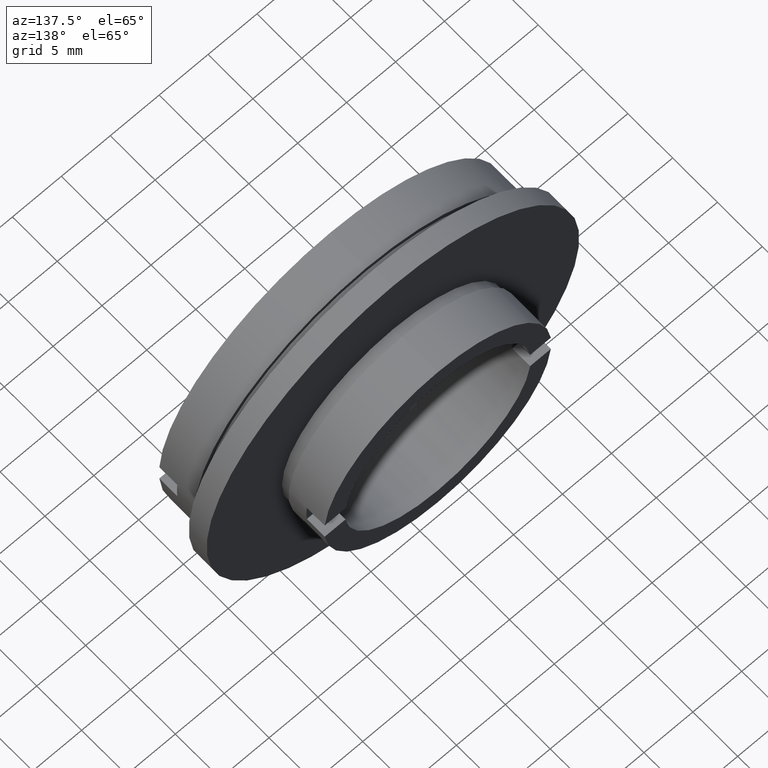
[diagram: clean part render]
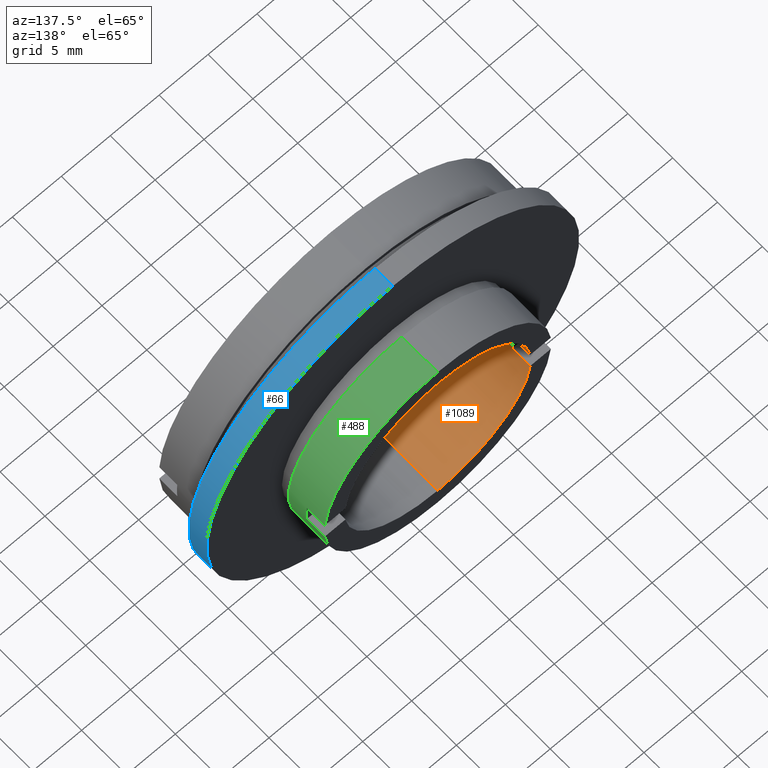
[diagram: same view with three faces highlighted in distinct colors, each labeled with its STEP entity id]
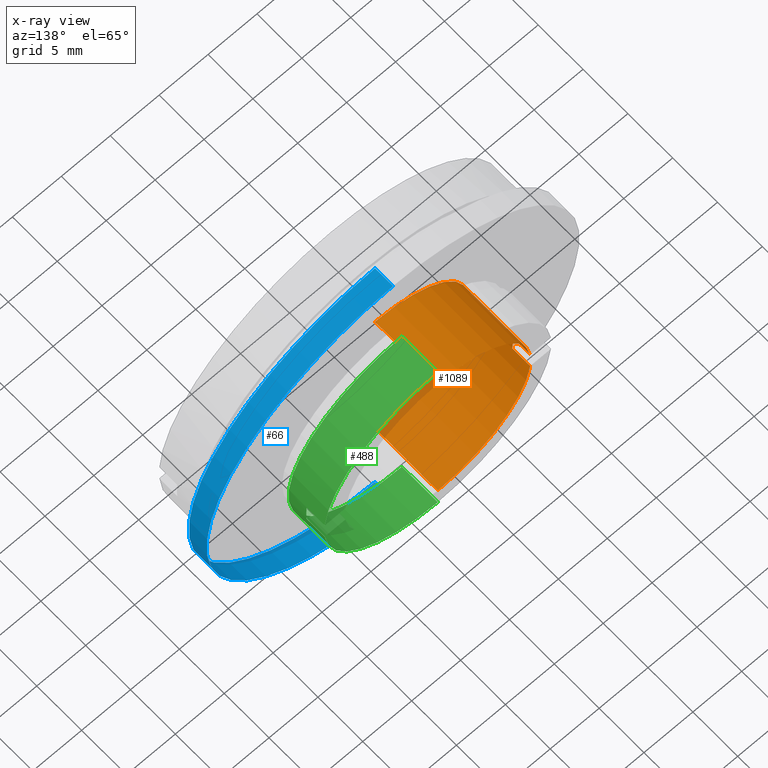
[diagram: x-ray of the same camera — body ghosted, the three highlighted faces saturated]
A machine part, auxiliary view with three faces highlighted in distinct colors.
The next image is the same camera in x-ray (body ghosted, the three faces saturated) — at least one of them is partly hidden behind the body in this view.
Their STEP definitions:

[orange] entity #1089 — the highlighted cylindrical surface (partial cylindrical patch) has radius 9.5 mm, axis along (-0, 1, -0).
#3 = ORIENTED_EDGE ( 'NONE', *, *, #1327, .T. ) ;
#42 = ORIENTED_EDGE ( 'NONE', *, *, #921, .F. ) ;
#74 = CARTESIAN_POINT ( 'NONE',  ( -9.447221813845590800, 12.00000000000000000, 1.000000000000001600 ) ) ;
#89 = EDGE_LOOP ( 'NONE', ( #270, #3, #592, #42, #268, #798, #903, #1098 ) ) ;
#94 = CARTESIAN_POINT ( 'NONE',  ( 1.163414459189985300E-015, 5.000000000000000900, -9.499999999999998200 ) ) ;
#111 = DIRECTION ( 'NONE',  ( -0.0000000000000000000, 1.000000000000000000, -0.0000000000000000000 ) ) ;
#202 = CARTESIAN_POINT ( 'NONE',  ( -9.447221813845590800, 10.00000000000000000, -0.9999999999999974500 ) ) ;
#225 = AXIS2_PLACEMENT_3D ( 'NONE', #477, #499, #486 ) ;
#268 = ORIENTED_EDGE ( 'NONE', *, *, #859, .F. ) ;
#270 = ORIENTED_EDGE ( 'NONE', *, *, #672, .F. ) ;
#300 = CARTESIAN_POINT ( 'NONE',  ( 0.0000000000000000000, 12.00000000000000000, 0.0000000000000000000 ) ) ;
#321 = VERTEX_POINT ( 'NONE', #442 ) ;
#342 = DIRECTION ( 'NONE',  ( -0.0000000000000000000, 1.000000000000000000, -0.0000000000000000000 ) ) ;
#359 = VERTEX_POINT ( 'NONE', #1019 ) ;
#388 = CARTESIAN_POINT ( 'NONE',  ( -9.447221813845589000, 22.67749945107591400, -1.000000000000000000 ) ) ;
#399 = VERTEX_POINT ( 'NONE', #510 ) ;
#413 = DIRECTION ( 'NONE',  ( -0.0000000000000000000, 1.000000000000000000, -0.0000000000000000000 ) ) ;
#415 = DIRECTION ( 'NONE',  ( 0.0000000000000000000, 0.0000000000000000000, 1.000000000000000000 ) ) ;
#442 = CARTESIAN_POINT ( 'NONE',  ( 0.0000000000000000000, 5.000000000000000900, 9.499999999999998200 ) ) ;
#472 = DIRECTION ( 'NONE',  ( -0.0000000000000000000, 1.000000000000000000, -0.0000000000000000000 ) ) ;
#477 = CARTESIAN_POINT ( 'NONE',  ( 0.0000000000000000000, 10.00000000000000000, 0.0000000000000000000 ) ) ;
#478 = VECTOR ( 'NONE', #1237, 1000.000000000000000 ) ;
#485 = CIRCLE ( 'NONE', #568, 9.499999999999998200 ) ;
#486 = DIRECTION ( 'NONE',  ( 0.0000000000000000000, 0.0000000000000000000, -1.000000000000000000 ) ) ;
#498 = EDGE_CURVE ( 'NONE', #1068, #972, #534, .T. ) ;
#499 = DIRECTION ( 'NONE',  ( -0.0000000000000000000, -1.000000000000000000, -0.0000000000000000000 ) ) ;
#510 = CARTESIAN_POINT ( 'NONE',  ( -9.447221813845590800, 10.00000000000000000, 1.000000000000001300 ) ) ;
#534 = CIRCLE ( 'NONE', #662, 9.499999999999998200 ) ;
#541 = CARTESIAN_POINT ( 'NONE',  ( 0.0000000000000000000, 5.000000000000000900, 0.0000000000000000000 ) ) ;
#544 = LINE ( 'NONE', #670, #1183 ) ;
#568 = AXIS2_PLACEMENT_3D ( 'NONE', #541, #472, #1241 ) ;
#592 = ORIENTED_EDGE ( 'NONE', *, *, #808, .T. ) ;
#598 = DIRECTION ( 'NONE',  ( 0.0000000000000000000, 0.0000000000000000000, 1.000000000000000000 ) ) ;
#629 = VERTEX_POINT ( 'NONE', #202 ) ;
#638 = CARTESIAN_POINT ( 'NONE',  ( 0.0000000000000000000, 22.67749945107591400, 0.0000000000000000000 ) ) ;
#649 = LINE ( 'NONE', #1288, #1184 ) ;
#652 = CARTESIAN_POINT ( 'NONE',  ( 0.0000000000000000000, 12.00000000000000000, 9.499999999999998200 ) ) ;
#660 = LINE ( 'NONE', #890, #478 ) ;
#662 = AXIS2_PLACEMENT_3D ( 'NONE', #1253, #111, #415 ) ;
#664 = EDGE_CURVE ( 'NONE', #1068, #399, #660, .T. ) ;
#670 = CARTESIAN_POINT ( 'NONE',  ( 1.163414459189985300E-015, 22.67749945107591400, -9.499999999999998200 ) ) ;
#672 = EDGE_CURVE ( 'NONE', #1054, #321, #485, .T. ) ;
#682 = CIRCLE ( 'NONE', #825, 9.499999999999998200 ) ;
#700 = DIRECTION ( 'NONE',  ( -0.0000000000000000000, 1.000000000000000000, -0.0000000000000000000 ) ) ;
#718 = CARTESIAN_POINT ( 'NONE',  ( 1.163414459189985300E-015, 12.00000000000000000, -9.499999999999998200 ) ) ;
#743 = CIRCLE ( 'NONE', #225, 9.499999999999998200 ) ;
#798 = ORIENTED_EDGE ( 'NONE', *, *, #664, .F. ) ;
#808 = EDGE_CURVE ( 'NONE', #929, #359, #682, .T. ) ;
#816 = VECTOR ( 'NONE', #342, 1000.000000000000000 ) ;
#819 = LINE ( 'NONE', #388, #816 ) ;
#825 = AXIS2_PLACEMENT_3D ( 'NONE', #300, #941, #930 ) ;
#827 = AXIS2_PLACEMENT_3D ( 'NONE', #638, #1127, #598 ) ;
#859 = EDGE_CURVE ( 'NONE', #399, #629, #743, .T. ) ;
#890 = CARTESIAN_POINT ( 'NONE',  ( -9.447221813845589000, 22.67749945107591400, 1.000000000000002900 ) ) ;
#903 = ORIENTED_EDGE ( 'NONE', *, *, #498, .T. ) ;
#921 = EDGE_CURVE ( 'NONE', #629, #359, #819, .T. ) ;
#925 = CYLINDRICAL_SURFACE ( 'NONE', #827, 9.499999999999998200 ) ;
#929 = VERTEX_POINT ( 'NONE', #718 ) ;
#930 = DIRECTION ( 'NONE',  ( 0.0000000000000000000, 0.0000000000000000000, 1.000000000000000000 ) ) ;
#941 = DIRECTION ( 'NONE',  ( -0.0000000000000000000, 1.000000000000000000, -0.0000000000000000000 ) ) ;
#972 = VERTEX_POINT ( 'NONE', #652 ) ;
#1019 = CARTESIAN_POINT ( 'NONE',  ( -9.447221813845590800, 12.00000000000000000, -0.9999999999999978900 ) ) ;
#1054 = VERTEX_POINT ( 'NONE', #94 ) ;
#1068 = VERTEX_POINT ( 'NONE', #74 ) ;
#1078 = FACE_OUTER_BOUND ( 'NONE', #89, .T. ) ;
#1089 = ADVANCED_FACE ( 'NONE', ( #1078 ), #925, .F. ) ;
#1098 = ORIENTED_EDGE ( 'NONE', *, *, #1099, .F. ) ;
#1099 = EDGE_CURVE ( 'NONE', #321, #972, #649, .T. ) ;
#1127 = DIRECTION ( 'NONE',  ( -0.0000000000000000000, 1.000000000000000000, -0.0000000000000000000 ) ) ;
#1183 = VECTOR ( 'NONE', #700, 1000.000000000000000 ) ;
#1184 = VECTOR ( 'NONE', #413, 1000.000000000000000 ) ;
#1237 = DIRECTION ( 'NONE',  ( 0.0000000000000000000, -1.000000000000000000, 0.0000000000000000000 ) ) ;
#1241 = DIRECTION ( 'NONE',  ( 0.0000000000000000000, 0.0000000000000000000, 1.000000000000000000 ) ) ;
#1253 = CARTESIAN_POINT ( 'NONE',  ( 0.0000000000000000000, 12.00000000000000000, 0.0000000000000000000 ) ) ;
#1288 = CARTESIAN_POINT ( 'NONE',  ( 0.0000000000000000000, 22.67749945107591400, 9.499999999999998200 ) ) ;
#1327 = EDGE_CURVE ( 'NONE', #1054, #929, #544, .T. ) ;

[blue] entity #66 — the highlighted cylindrical surface (partial cylindrical patch) has radius 19.05 mm, axis along (-0, 1, -0).
#26 = ORIENTED_EDGE ( 'NONE', *, *, #778, .T. ) ;
#34 = LINE ( 'NONE', #955, #582 ) ;
#50 = DIRECTION ( 'NONE',  ( -0.0000000000000000000, 1.000000000000000000, -0.0000000000000000000 ) ) ;
#62 = CARTESIAN_POINT ( 'NONE',  ( 2.332952152375707300E-015, 5.000000000000000900, -19.04999999999999700 ) ) ;
#66 = ADVANCED_FACE ( 'NONE', ( #176 ), #149, .T. ) ;
#83 = ORIENTED_EDGE ( 'NONE', *, *, #1179, .F. ) ;
#149 = CYLINDRICAL_SURFACE ( 'NONE', #248, 19.04999999999999700 ) ;
#176 = FACE_OUTER_BOUND ( 'NONE', #1143, .T. ) ;
#248 = AXIS2_PLACEMENT_3D ( 'NONE', #1088, #50, #393 ) ;
#332 = DIRECTION ( 'NONE',  ( 0.0000000000000000000, 0.0000000000000000000, 1.000000000000000000 ) ) ;
#393 = DIRECTION ( 'NONE',  ( 0.0000000000000000000, 0.0000000000000000000, 1.000000000000000000 ) ) ;
#412 = ORIENTED_EDGE ( 'NONE', *, *, #840, .T. ) ;
#414 = AXIS2_PLACEMENT_3D ( 'NONE', #878, #786, #332 ) ;
#421 = CARTESIAN_POINT ( 'NONE',  ( 0.0000000000000000000, 5.000000000000000900, 19.04999999999999700 ) ) ;
#558 = DIRECTION ( 'NONE',  ( -0.0000000000000000000, 1.000000000000000000, -0.0000000000000000000 ) ) ;
#562 = CIRCLE ( 'NONE', #1108, 19.04999999999999700 ) ;
#582 = VECTOR ( 'NONE', #858, 1000.000000000000000 ) ;
#617 = ORIENTED_EDGE ( 'NONE', *, *, #815, .F. ) ;
#692 = CIRCLE ( 'NONE', #414, 19.04999999999999700 ) ;
#699 = VERTEX_POINT ( 'NONE', #1336 ) ;
#713 = LINE ( 'NONE', #1153, #745 ) ;
#745 = VECTOR ( 'NONE', #558, 1000.000000000000000 ) ;
#778 = EDGE_CURVE ( 'NONE', #1308, #1045, #562, .T. ) ;
#786 = DIRECTION ( 'NONE',  ( -0.0000000000000000000, 1.000000000000000000, -0.0000000000000000000 ) ) ;
#815 = EDGE_CURVE ( 'NONE', #699, #1171, #692, .T. ) ;
#840 = EDGE_CURVE ( 'NONE', #1045, #1171, #713, .T. ) ;
#858 = DIRECTION ( 'NONE',  ( -0.0000000000000000000, 1.000000000000000000, -0.0000000000000000000 ) ) ;
#878 = CARTESIAN_POINT ( 'NONE',  ( 0.0000000000000000000, 7.000000000000002700, 0.0000000000000000000 ) ) ;
#955 = CARTESIAN_POINT ( 'NONE',  ( 0.0000000000000000000, 22.67749945107591400, 19.04999999999999700 ) ) ;
#979 = DIRECTION ( 'NONE',  ( -0.0000000000000000000, 1.000000000000000000, -0.0000000000000000000 ) ) ;
#1005 = CARTESIAN_POINT ( 'NONE',  ( 0.0000000000000000000, 5.000000000000000900, 0.0000000000000000000 ) ) ;
#1009 = DIRECTION ( 'NONE',  ( 0.0000000000000000000, 0.0000000000000000000, 1.000000000000000000 ) ) ;
#1045 = VERTEX_POINT ( 'NONE', #62 ) ;
#1088 = CARTESIAN_POINT ( 'NONE',  ( 0.0000000000000000000, 22.67749945107591400, 0.0000000000000000000 ) ) ;
#1108 = AXIS2_PLACEMENT_3D ( 'NONE', #1005, #979, #1009 ) ;
#1143 = EDGE_LOOP ( 'NONE', ( #26, #412, #617, #83 ) ) ;
#1153 = CARTESIAN_POINT ( 'NONE',  ( 2.332952152375707300E-015, 22.67749945107591400, -19.04999999999999700 ) ) ;
#1171 = VERTEX_POINT ( 'NONE', #1264 ) ;
#1179 = EDGE_CURVE ( 'NONE', #1308, #699, #34, .T. ) ;
#1264 = CARTESIAN_POINT ( 'NONE',  ( 2.332952152375707300E-015, 7.000000000000002700, -19.04999999999999700 ) ) ;
#1308 = VERTEX_POINT ( 'NONE', #421 ) ;
#1336 = CARTESIAN_POINT ( 'NONE',  ( 0.0000000000000000000, 7.000000000000002700, 19.04999999999999700 ) ) ;

[green] entity #488 — the highlighted cylindrical surface (partial cylindrical patch) has radius 11.6 mm, axis along (-0, 1, -0).
#16 = VERTEX_POINT ( 'NONE', #724 ) ;
#20 = LINE ( 'NONE', #1114, #235 ) ;
#37 = CIRCLE ( 'NONE', #640, 11.59999999999999800 ) ;
#88 = VERTEX_POINT ( 'NONE', #386 ) ;
#98 = DIRECTION ( 'NONE',  ( 0.0000000000000000000, 1.000000000000000000, 0.0000000000000000000 ) ) ;
#105 = VERTEX_POINT ( 'NONE', #1174 ) ;
#120 = CARTESIAN_POINT ( 'NONE',  ( 1.420590287010929300E-015, 8.000000000000000000, -11.59999999999999800 ) ) ;
#123 = ORIENTED_EDGE ( 'NONE', *, *, #425, .F. ) ;
#148 = DIRECTION ( 'NONE',  ( -0.0000000000000000000, 1.000000000000000000, -0.0000000000000000000 ) ) ;
#150 = VERTEX_POINT ( 'NONE', #346 ) ;
#201 = AXIS2_PLACEMENT_3D ( 'NONE', #395, #404, #289 ) ;
#206 = CARTESIAN_POINT ( 'NONE',  ( 11.55681617055493000, 10.00000000000000000, -0.9999999999999974500 ) ) ;
#223 = VERTEX_POINT ( 'NONE', #366 ) ;
#235 = VECTOR ( 'NONE', #1165, 1000.000000000000000 ) ;
#247 = CARTESIAN_POINT ( 'NONE',  ( 0.0000000000000000000, 10.00000000000000000, 0.0000000000000000000 ) ) ;
#252 = EDGE_CURVE ( 'NONE', #1003, #1274, #37, .T. ) ;
#282 = CARTESIAN_POINT ( 'NONE',  ( 0.0000000000000000000, 22.67749945107591400, 0.0000000000000000000 ) ) ;
#289 = DIRECTION ( 'NONE',  ( 0.0000000000000000000, 0.0000000000000000000, 1.000000000000000000 ) ) ;
#299 = FACE_OUTER_BOUND ( 'NONE', #874, .T. ) ;
#325 = EDGE_CURVE ( 'NONE', #1026, #223, #1033, .T. ) ;
#333 = CARTESIAN_POINT ( 'NONE',  ( 0.0000000000000000000, 12.00000000000000000, 0.0000000000000000000 ) ) ;
#346 = CARTESIAN_POINT ( 'NONE',  ( 11.55681617055493000, 10.00000000000000000, 1.000000000000001300 ) ) ;
#362 = ORIENTED_EDGE ( 'NONE', *, *, #252, .T. ) ;
#366 = CARTESIAN_POINT ( 'NONE',  ( 11.55681617055493000, 12.00000000000000000, -0.9999999999999978900 ) ) ;
#374 = CIRCLE ( 'NONE', #1091, 11.59999999999999800 ) ;
#386 = CARTESIAN_POINT ( 'NONE',  ( 1.420590287010929300E-015, 12.00000000000000000, -11.59999999999999800 ) ) ;
#395 = CARTESIAN_POINT ( 'NONE',  ( 0.0000000000000000000, 12.00000000000000000, 0.0000000000000000000 ) ) ;
#404 = DIRECTION ( 'NONE',  ( -0.0000000000000000000, 1.000000000000000000, -0.0000000000000000000 ) ) ;
#425 = EDGE_CURVE ( 'NONE', #150, #1026, #374, .T. ) ;
#484 = CARTESIAN_POINT ( 'NONE',  ( 0.0000000000000000000, 22.67749945107591400, 11.59999999999999800 ) ) ;
#488 = ADVANCED_FACE ( 'NONE', ( #299 ), #1226, .T. ) ;
#490 = EDGE_CURVE ( 'NONE', #223, #88, #533, .T. ) ;
#497 = DIRECTION ( 'NONE',  ( -0.0000000000000000000, 1.000000000000000000, -0.0000000000000000000 ) ) ;
#533 = CIRCLE ( 'NONE', #731, 11.59999999999999800 ) ;
#551 = ORIENTED_EDGE ( 'NONE', *, *, #1318, .F. ) ;
#595 = CARTESIAN_POINT ( 'NONE',  ( 0.0000000000000000000, 8.000000000000000000, 0.0000000000000000000 ) ) ;
#640 = AXIS2_PLACEMENT_3D ( 'NONE', #595, #1334, #1272 ) ;
#724 = CARTESIAN_POINT ( 'NONE',  ( 0.0000000000000000000, 12.00000000000000000, 11.59999999999999800 ) ) ;
#725 = LINE ( 'NONE', #484, #756 ) ;
#727 = ORIENTED_EDGE ( 'NONE', *, *, #877, .F. ) ;
#731 = AXIS2_PLACEMENT_3D ( 'NONE', #333, #741, #1256 ) ;
#741 = DIRECTION ( 'NONE',  ( -0.0000000000000000000, 1.000000000000000000, -0.0000000000000000000 ) ) ;
#756 = VECTOR ( 'NONE', #497, 1000.000000000000000 ) ;
#779 = CIRCLE ( 'NONE', #201, 11.59999999999999800 ) ;
#874 = EDGE_LOOP ( 'NONE', ( #362, #1052, #1185, #1242, #123, #551, #950, #727 ) ) ;
#877 = EDGE_CURVE ( 'NONE', #1003, #16, #725, .T. ) ;
#886 = EDGE_CURVE ( 'NONE', #16, #105, #779, .T. ) ;
#900 = AXIS2_PLACEMENT_3D ( 'NONE', #282, #1039, #920 ) ;
#912 = VECTOR ( 'NONE', #1133, 1000.000000000000000 ) ;
#920 = DIRECTION ( 'NONE',  ( 0.0000000000000000000, 0.0000000000000000000, 1.000000000000000000 ) ) ;
#950 = ORIENTED_EDGE ( 'NONE', *, *, #886, .F. ) ;
#995 = EDGE_CURVE ( 'NONE', #1274, #88, #1040, .T. ) ;
#1003 = VERTEX_POINT ( 'NONE', #1190 ) ;
#1026 = VERTEX_POINT ( 'NONE', #206 ) ;
#1033 = LINE ( 'NONE', #1191, #912 ) ;
#1039 = DIRECTION ( 'NONE',  ( -0.0000000000000000000, 1.000000000000000000, -0.0000000000000000000 ) ) ;
#1040 = LINE ( 'NONE', #1043, #1265 ) ;
#1043 = CARTESIAN_POINT ( 'NONE',  ( 1.420590287010929300E-015, 22.67749945107591400, -11.59999999999999800 ) ) ;
#1052 = ORIENTED_EDGE ( 'NONE', *, *, #995, .T. ) ;
#1091 = AXIS2_PLACEMENT_3D ( 'NONE', #247, #98, #1216 ) ;
#1114 = CARTESIAN_POINT ( 'NONE',  ( 11.55681617055493000, 22.67749945107591400, 1.000000000000002900 ) ) ;
#1133 = DIRECTION ( 'NONE',  ( -0.0000000000000000000, 1.000000000000000000, -0.0000000000000000000 ) ) ;
#1165 = DIRECTION ( 'NONE',  ( 0.0000000000000000000, -1.000000000000000000, 0.0000000000000000000 ) ) ;
#1174 = CARTESIAN_POINT ( 'NONE',  ( 11.55681617055493000, 12.00000000000000000, 1.000000000000001600 ) ) ;
#1185 = ORIENTED_EDGE ( 'NONE', *, *, #490, .F. ) ;
#1190 = CARTESIAN_POINT ( 'NONE',  ( 0.0000000000000000000, 8.000000000000000000, 11.59999999999999800 ) ) ;
#1191 = CARTESIAN_POINT ( 'NONE',  ( 11.55681617055492800, 22.67749945107591400, -1.000000000000000000 ) ) ;
#1216 = DIRECTION ( 'NONE',  ( 1.243449787580175200E-014, 0.0000000000000000000, -1.000000000000000000 ) ) ;
#1226 = CYLINDRICAL_SURFACE ( 'NONE', #900, 11.59999999999999800 ) ;
#1242 = ORIENTED_EDGE ( 'NONE', *, *, #325, .F. ) ;
#1256 = DIRECTION ( 'NONE',  ( 0.0000000000000000000, 0.0000000000000000000, 1.000000000000000000 ) ) ;
#1265 = VECTOR ( 'NONE', #148, 1000.000000000000000 ) ;
#1272 = DIRECTION ( 'NONE',  ( 0.0000000000000000000, 0.0000000000000000000, 1.000000000000000000 ) ) ;
#1274 = VERTEX_POINT ( 'NONE', #120 ) ;
#1318 = EDGE_CURVE ( 'NONE', #105, #150, #20, .T. ) ;
#1334 = DIRECTION ( 'NONE',  ( -0.0000000000000000000, 1.000000000000000000, -0.0000000000000000000 ) ) ;